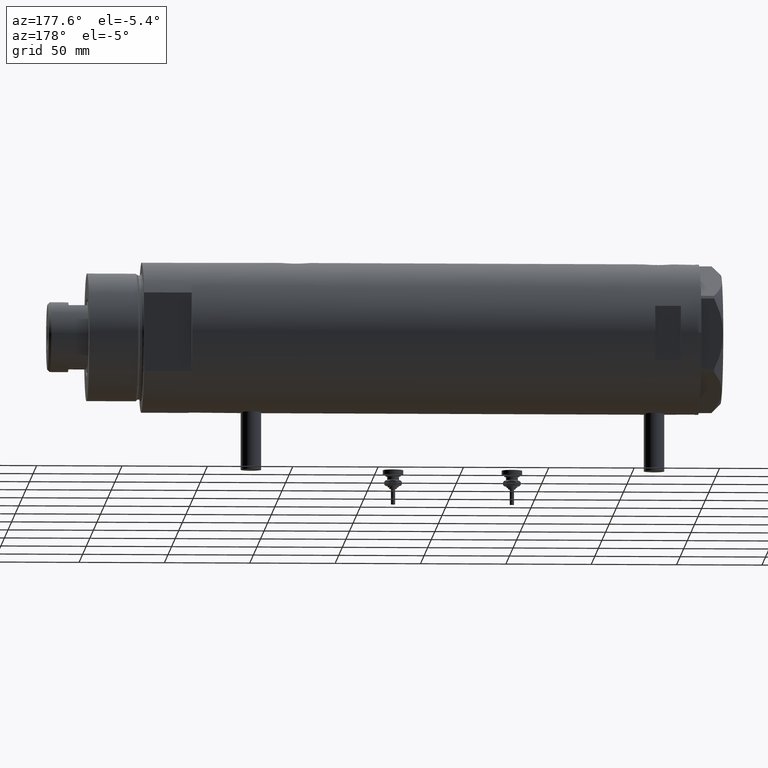
[diagram: clean part render]
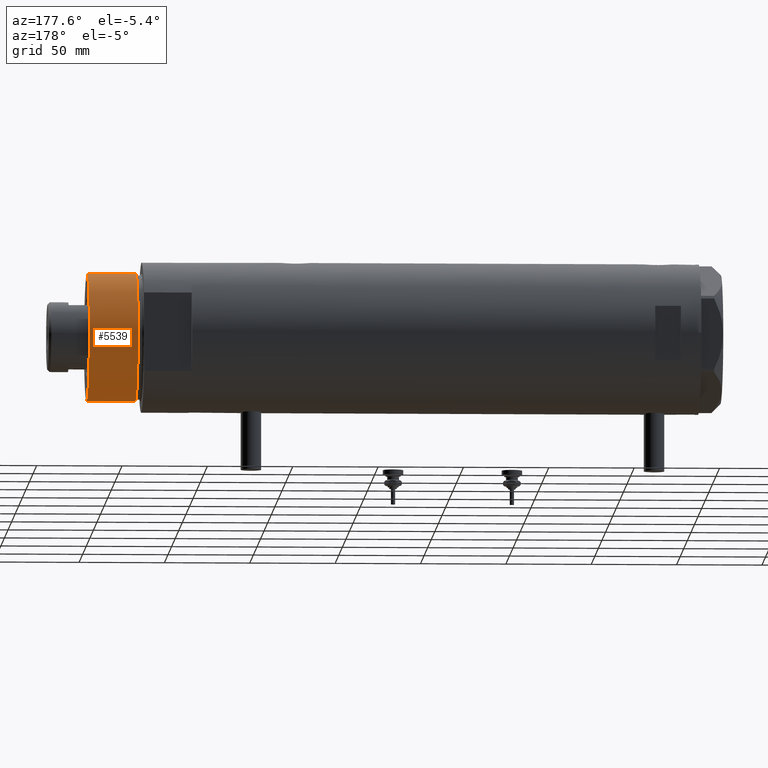
[diagram: same view with one face highlighted and labeled with its STEP entity id]
A machine part, auxiliary view. The second image highlights one B-rep face of the part: STEP entity #5539.
In plain terms, the highlighted cylindrical surface (partial cylindrical patch) has radius 37.5 mm, axis along (-1, -0, 0).
Its self-contained STEP definition (entity closure, byte-faithful):
#112 = FACE_OUTER_BOUND ( 'NONE', #4923, .T. ) ;
#182 = VERTEX_POINT ( 'NONE', #4973 ) ;
#222 = AXIS2_PLACEMENT_3D ( 'NONE', #4540, #393, #3621 ) ;
#226 = DIRECTION ( 'NONE',  ( -0.000000000000000000, -0.000000000000000000, -1.000000000000000000 ) ) ;
#254 = CARTESIAN_POINT ( 'NONE',  ( 37.50000000000000711, 4.592425496802575156E-15, 59.89999999999999147 ) ) ;
#320 = VERTEX_POINT ( 'NONE', #5982 ) ;
#393 = DIRECTION ( 'NONE',  ( 0.000000000000000000, 0.000000000000000000, 1.000000000000000000 ) ) ;
#561 = AXIS2_PLACEMENT_3D ( 'NONE', #1969, #2929, #2529 ) ;
#632 = EDGE_CURVE ( 'NONE', #3214, #182, #2838, .T. ) ;
#743 = LINE ( 'NONE', #4359, #3441 ) ;
#1101 = VECTOR ( 'NONE', #2485, 1000.000000000000000 ) ;
#1161 = EDGE_CURVE ( 'NONE', #3214, #320, #4322, .T. ) ;
#1364 = DIRECTION ( 'NONE',  ( -0.000000000000000000, -0.000000000000000000, 1.000000000000000000 ) ) ;
#1528 = EDGE_CURVE ( 'NONE', #320, #2265, #3515, .T. ) ;
#1969 = CARTESIAN_POINT ( 'NONE',  ( 0.000000000000000000, 0.000000000000000000, 59.89999999999999147 ) ) ;
#2265 = VERTEX_POINT ( 'NONE', #4850 ) ;
#2485 = DIRECTION ( 'NONE',  ( -0.000000000000000000, -0.000000000000000000, -1.000000000000000000 ) ) ;
#2529 = DIRECTION ( 'NONE',  ( -1.000000000000000000, 0.000000000000000000, 0.000000000000000000 ) ) ;
#2795 = ORIENTED_EDGE ( 'NONE', *, *, #632, .F. ) ;
#2838 = CIRCLE ( 'NONE', #222, 37.50000000000000711 ) ;
#2929 = DIRECTION ( 'NONE',  ( -0.000000000000000000, -0.000000000000000000, -1.000000000000000000 ) ) ;
#3214 = VERTEX_POINT ( 'NONE', #254 ) ;
#3306 = ORIENTED_EDGE ( 'NONE', *, *, #4508, .F. ) ;
#3390 = CARTESIAN_POINT ( 'NONE',  ( 37.50000000000000711, 4.592425496802575156E-15, 59.89999999999999147 ) ) ;
#3441 = VECTOR ( 'NONE', #226, 1000.000000000000000 ) ;
#3515 = CIRCLE ( 'NONE', #5162, 37.50000000000000711 ) ;
#3603 = CARTESIAN_POINT ( 'NONE',  ( 0.000000000000000000, 0.000000000000000000, 31.27384048104054415 ) ) ;
#3621 = DIRECTION ( 'NONE',  ( 1.000000000000000000, 0.000000000000000000, 0.000000000000000000 ) ) ;
#3769 = ORIENTED_EDGE ( 'NONE', *, *, #1528, .T. ) ;
#4252 = CYLINDRICAL_SURFACE ( 'NONE', #561, 37.50000000000000711 ) ;
#4322 = LINE ( 'NONE', #3390, #1101 ) ;
#4359 = CARTESIAN_POINT ( 'NONE',  ( -37.50000000000000711, 0.000000000000000000, 59.89999999999999147 ) ) ;
#4508 = EDGE_CURVE ( 'NONE', #182, #2265, #743, .T. ) ;
#4540 = CARTESIAN_POINT ( 'NONE',  ( 0.000000000000000000, 0.000000000000000000, 59.89999999999999147 ) ) ;
#4709 = ORIENTED_EDGE ( 'NONE', *, *, #1161, .T. ) ;
#4850 = CARTESIAN_POINT ( 'NONE',  ( -37.50000000000000711, 0.000000000000000000, 31.27384048104054415 ) ) ;
#4923 = EDGE_LOOP ( 'NONE', ( #2795, #4709, #3769, #3306 ) ) ;
#4973 = CARTESIAN_POINT ( 'NONE',  ( -37.50000000000000711, 0.000000000000000000, 59.89999999999999147 ) ) ;
#5162 = AXIS2_PLACEMENT_3D ( 'NONE', #3603, #1364, #5454 ) ;
#5454 = DIRECTION ( 'NONE',  ( 1.000000000000000000, 0.000000000000000000, 0.000000000000000000 ) ) ;
#5539 = ADVANCED_FACE ( 'NONE', ( #112 ), #4252, .T. ) ;
#5982 = CARTESIAN_POINT ( 'NONE',  ( 37.50000000000000711, 4.592425496802575156E-15, 31.27384048104054415 ) ) ;